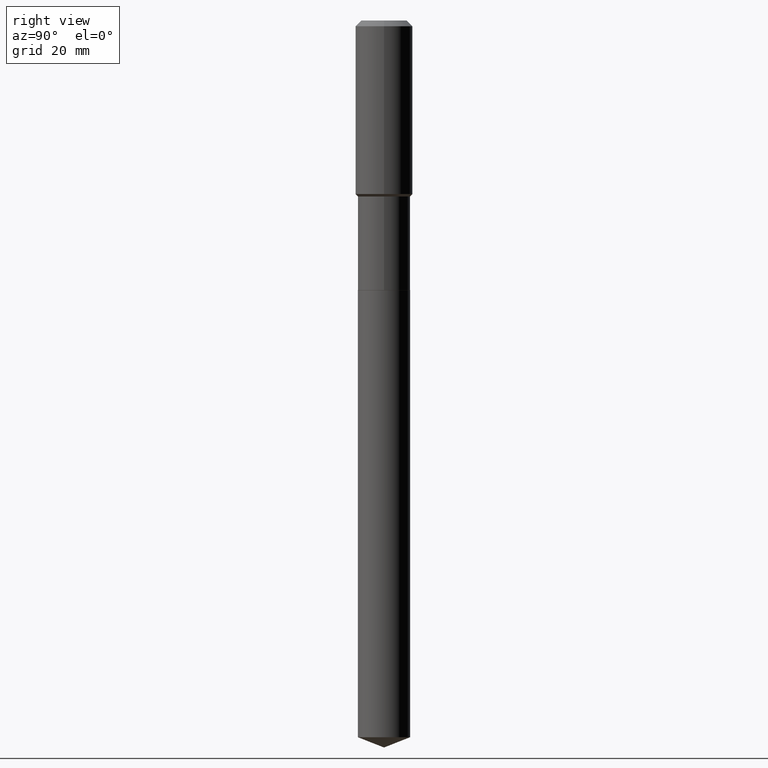
[diagram: clean part render]
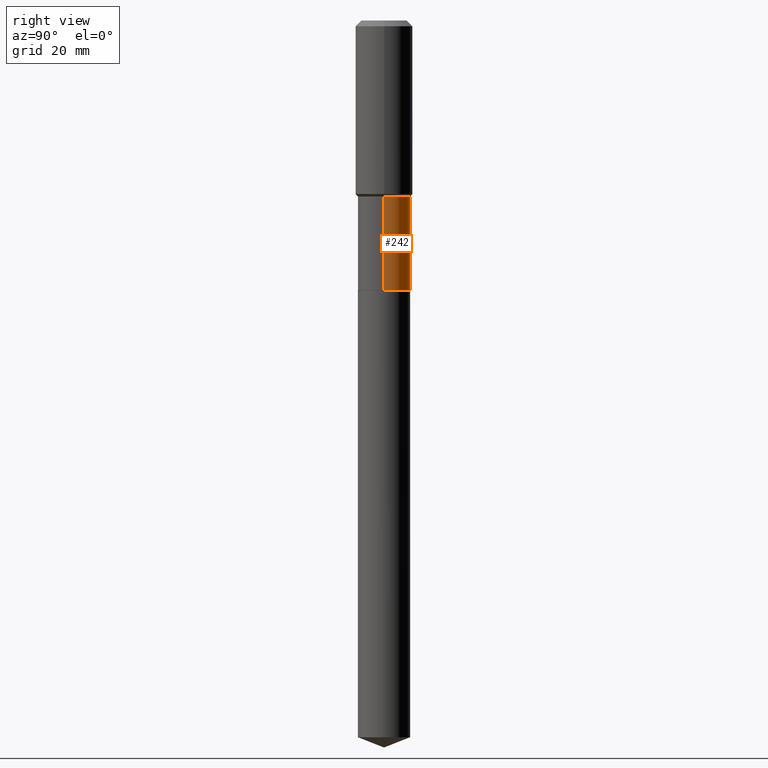
[diagram: same view with one face highlighted and labeled with its STEP entity id]
A machine part, right view. The second image highlights one B-rep face of the part: STEP entity #242.
In plain terms, the highlighted cylindrical surface (edge-blend (fillet) strip) has radius 6.3995 mm, axis along (-0, 0, 1).
Its self-contained STEP definition (entity closure, byte-faithful):
#2 = DIRECTION ( 'NONE',  ( -2.445468806185136597E-29, 3.491481338843145583E-15, 1.000000000000000000 ) ) ;
#11 = DIRECTION ( 'NONE',  ( 1.000000000000000000, -6.982962677686265922E-15, 0.000000000000000000 ) ) ;
#30 = VERTEX_POINT ( 'NONE', #431 ) ;
#43 = EDGE_CURVE ( 'NONE', #74, #30, #157, .T. ) ;
#47 = CARTESIAN_POINT ( 'NONE',  ( 4.147759642170611054E-29, -5.921901498811861064E-15, -1.696100000000000607 ) ) ;
#66 = AXIS2_PLACEMENT_3D ( 'NONE', #47, #464, #270 ) ;
#74 = VERTEX_POINT ( 'NONE', #403 ) ;
#77 = DIRECTION ( 'NONE',  ( -2.445468806185136597E-29, 3.491481338843145583E-15, 1.000000000000000000 ) ) ;
#85 = AXIS2_PLACEMENT_3D ( 'NONE', #468, #77, #11 ) ;
#101 = EDGE_CURVE ( 'NONE', #137, #399, #328, .T. ) ;
#108 = EDGE_CURVE ( 'NONE', #30, #399, #277, .T. ) ;
#111 = DIRECTION ( 'NONE',  ( -2.445468806185136877E-29, 3.491481338843145188E-15, 1.000000000000000000 ) ) ;
#117 = CARTESIAN_POINT ( 'NONE',  ( -0.2519500000000000073, -5.706172585815604588E-15, -2.598000000000000753 ) ) ;
#134 = CARTESIAN_POINT ( 'NONE',  ( 0.000000000000000000, 0.000000000000000000, 0.000000000000000000 ) ) ;
#137 = VERTEX_POINT ( 'NONE', #117 ) ;
#157 = LINE ( 'NONE', #179, #297 ) ;
#179 = CARTESIAN_POINT ( 'NONE',  ( 0.2519499999999999518, -1.759357446643054800E-15, 1.228552738661785732E-29 ) ) ;
#204 = ORIENTED_EDGE ( 'NONE', *, *, #205, .T. ) ;
#205 = EDGE_CURVE ( 'NONE', #74, #137, #339, .T. ) ;
#242 = ADVANCED_FACE ( 'NONE', ( #327 ), #376, .T. ) ;
#270 = DIRECTION ( 'NONE',  ( 1.000000000000000000, -6.982962677686269077E-15, 0.000000000000000000 ) ) ;
#273 = ORIENTED_EDGE ( 'NONE', *, *, #43, .F. ) ;
#277 = CIRCLE ( 'NONE', #66, 0.2519499999999998963 ) ;
#278 = VECTOR ( 'NONE', #111, 39.37007874015748143 ) ;
#288 = DIRECTION ( 'NONE',  ( 1.000000000000000000, -6.982962677686267499E-15, 4.876176775795935793E-29 ) ) ;
#297 = VECTOR ( 'NONE', #483, 39.37007874015748143 ) ;
#327 = FACE_OUTER_BOUND ( 'NONE', #476, .T. ) ;
#328 = LINE ( 'NONE', #420, #278 ) ;
#333 = CARTESIAN_POINT ( 'NONE',  ( -0.2519499999999998963, -5.706172585815605377E-15, -1.696100000000000607 ) ) ;
#339 = CIRCLE ( 'NONE', #85, 0.2519500000000000073 ) ;
#376 = CYLINDRICAL_SURFACE ( 'NONE', #415, 0.2519499999999999518 ) ;
#399 = VERTEX_POINT ( 'NONE', #333 ) ;
#403 = CARTESIAN_POINT ( 'NONE',  ( 0.2519500000000000073, -1.083022596495754904E-14, -2.598000000000000753 ) ) ;
#404 = ORIENTED_EDGE ( 'NONE', *, *, #108, .F. ) ;
#407 = ORIENTED_EDGE ( 'NONE', *, *, #101, .T. ) ;
#415 = AXIS2_PLACEMENT_3D ( 'NONE', #134, #2, #288 ) ;
#420 = CARTESIAN_POINT ( 'NONE',  ( -0.2519499999999999518, 1.790212422747572076E-15, -1.239325695989723260E-29 ) ) ;
#431 = CARTESIAN_POINT ( 'NONE',  ( 0.2519499999999998963, -7.681258945454915470E-15, -1.696100000000000607 ) ) ;
#464 = DIRECTION ( 'NONE',  ( -2.445468806185136597E-29, 3.491481338843145583E-15, 1.000000000000000000 ) ) ;
#468 = CARTESIAN_POINT ( 'NONE',  ( 6.353327958468985739E-29, -9.070868518314495419E-15, -2.598000000000000753 ) ) ;
#476 = EDGE_LOOP ( 'NONE', ( #204, #407, #404, #273 ) ) ;
#483 = DIRECTION ( 'NONE',  ( -2.445468806185136877E-29, 3.491481338843145188E-15, 1.000000000000000000 ) ) ;